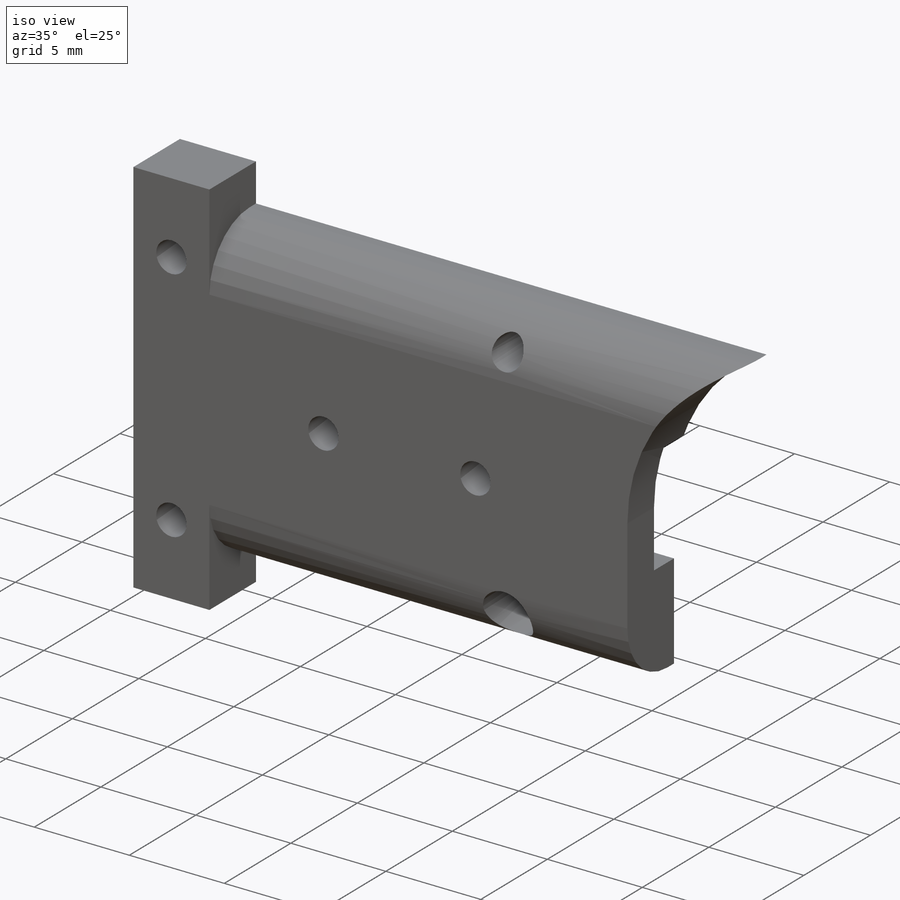
[diagram: iso view]
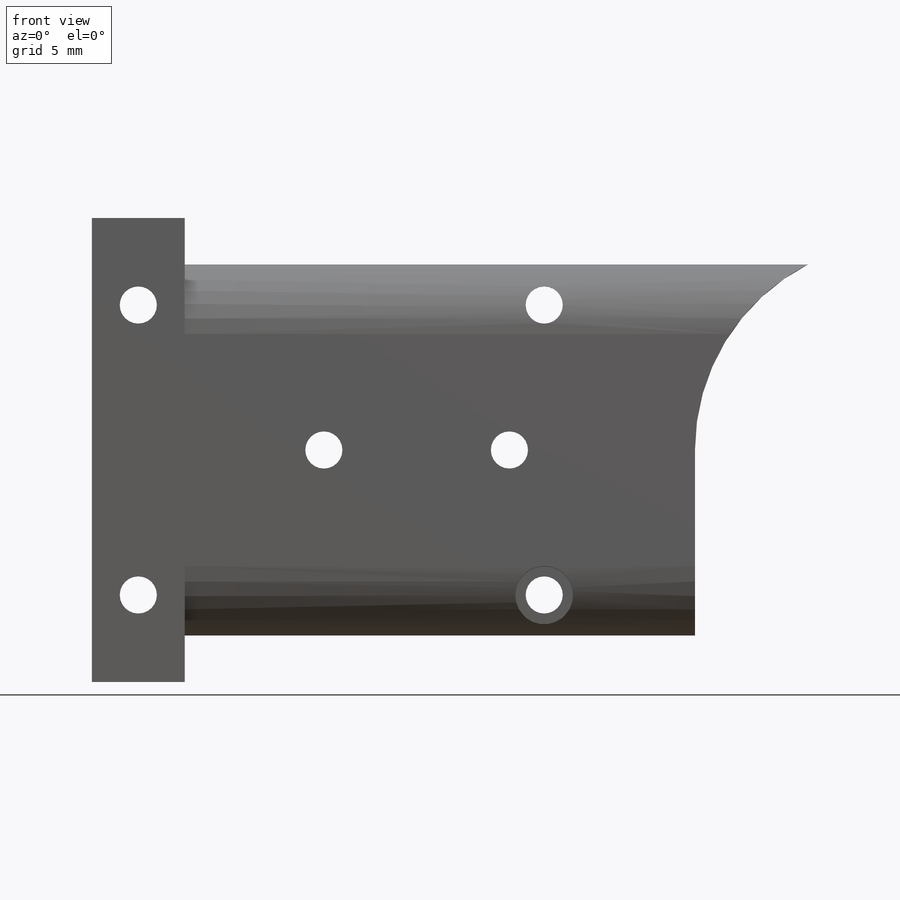
[diagram: front view]
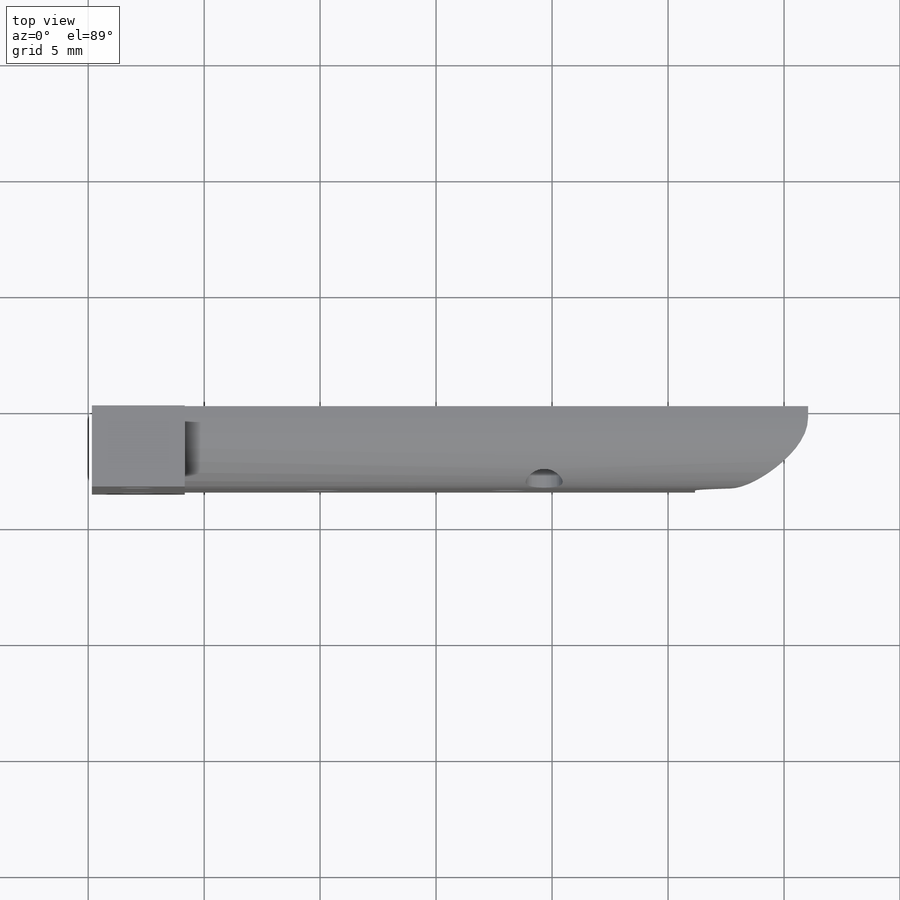
[diagram: top view]
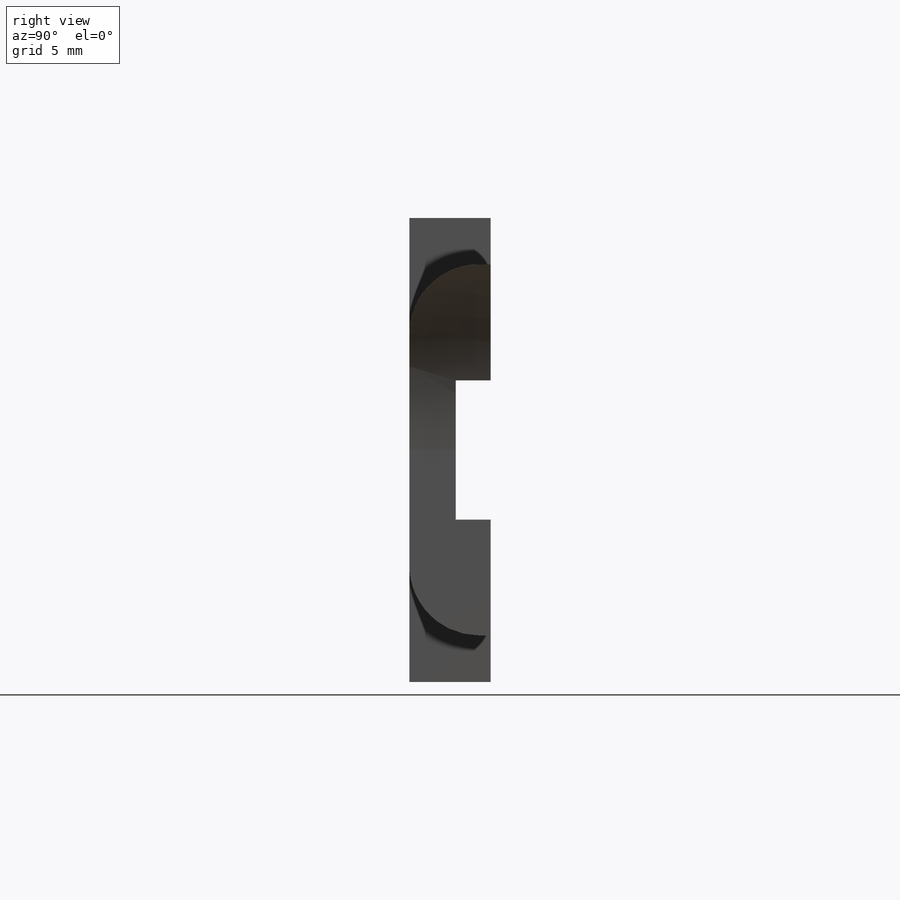
[diagram: right view]
SOLIDWORKS PART (.sldprt)
format: sldprt  version: not decoded by parser v0  size: 218,624 bytes
history: native  units: mm
features: sketch x4, cut_extrude x3, material x1, extrude x1, fillet x1 (+14 scaffold rows collapsed; 1 parser-record rows omitted)
feature tree (25):
  scaffold x14  (default folders/planes/origin — collapsed)
  material  "Material <not specified>"
  sketch  "Sketch1"  dims[D1=~2.490247mm]
  extrude  "Boss-Extrude1"  Depth=3.5mm
  sketch  "Sketch3"  dims[D1=3.0mm]
  cut_extrude  "Wire Canal"  Depth=1.5mm
  parser-record x1  (decoder bookkeeping rows leaked as tree rows — omitted from the tree; the rows remain in map.json)
  sketch  "Sketch2"  dims[D1=~2.218499mm]
  cut_extrude  "Screw Holes"  [1 undecoded]
  fillet  "Fillet1"  Radius=3mm
  sketch  "Sketch4"  dims[D1=2.5mm]
  cut_extrude  "Cut-Extrude1"  Depth=3mm
decode coverage: 8 of 9 modeling features carry decoded parameters
note: ~ marks probable driven/reference dimensions
note: 1 parameter value undecoded
note: suppression state not decoded; provenance and decode notes live in map.json
